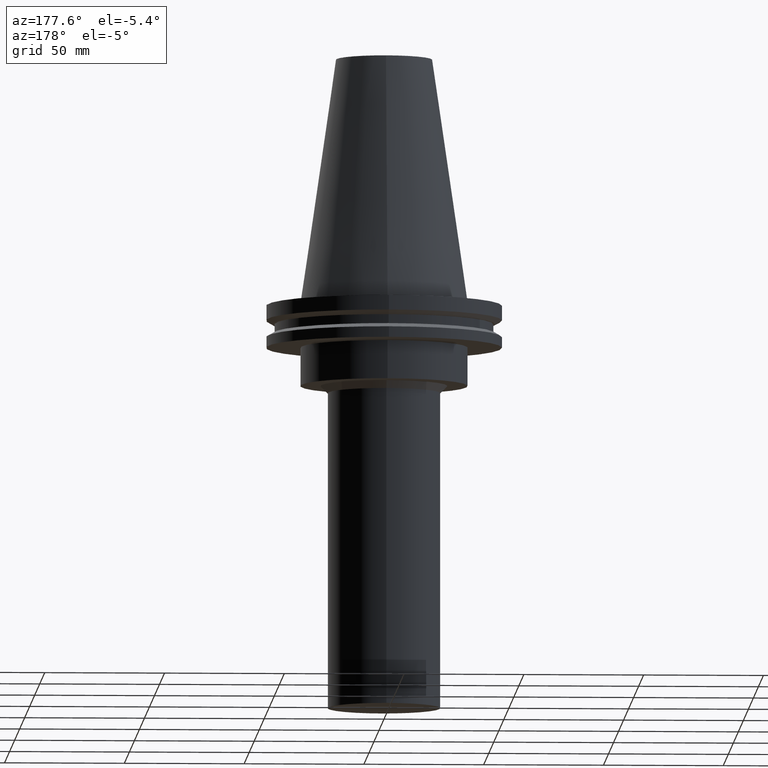
[diagram: clean part render]
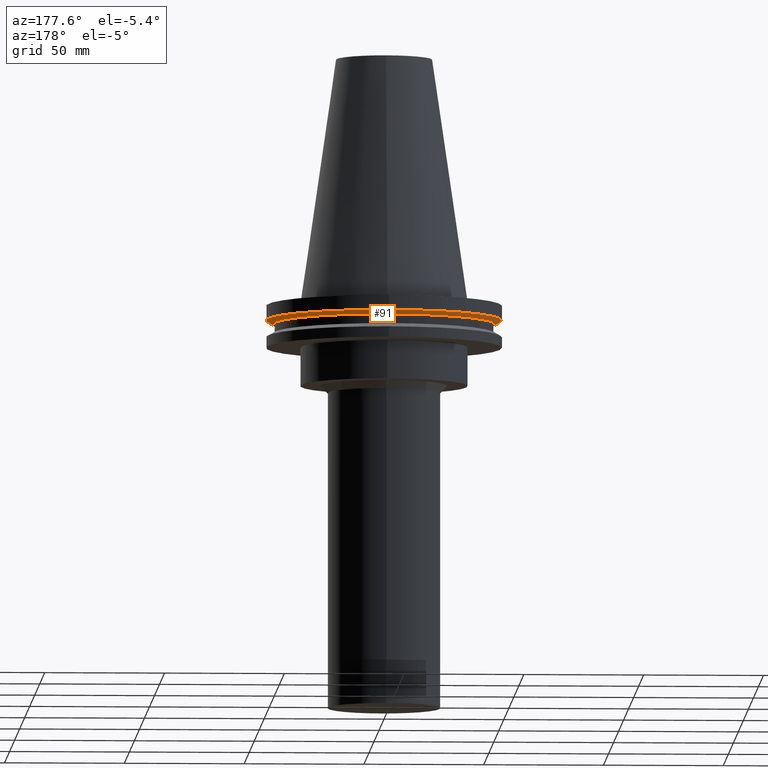
[diagram: same view with one face highlighted and labeled with its STEP entity id]
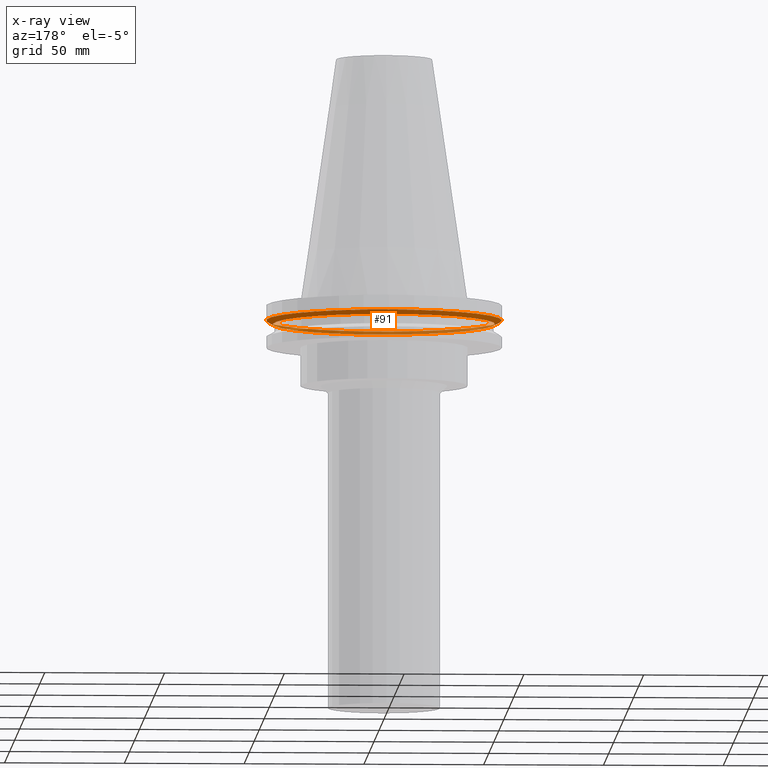
[diagram: x-ray of the same camera — body ghosted, the highlighted face saturated]
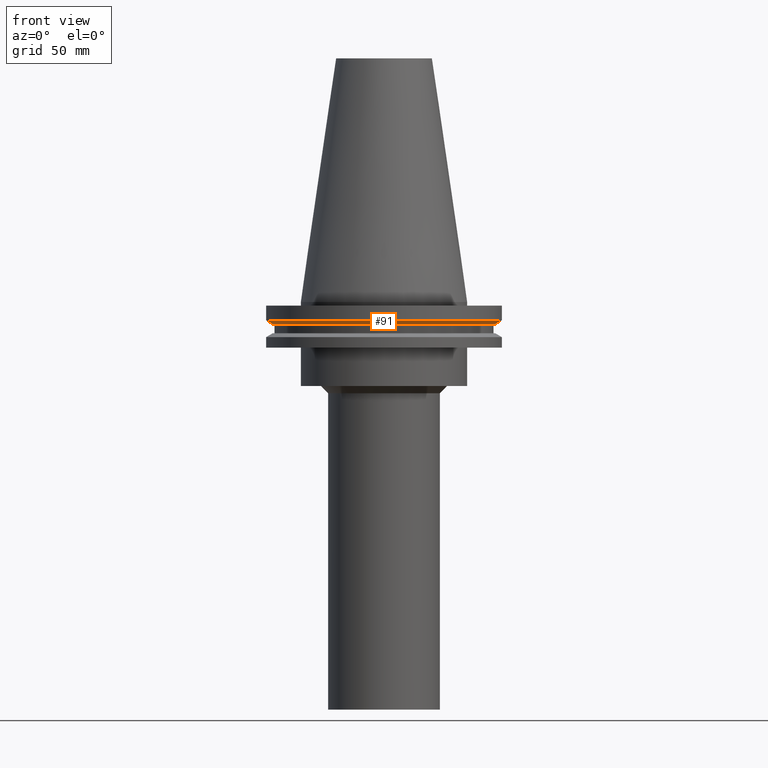
[diagram: same view with one face highlighted and labeled with its STEP entity id]
A machine part, auxiliary view. The second image highlights one B-rep face of the part: STEP entity #91.
The next image is the same camera in x-ray: the body ghosted, the highlighted face saturated — about 36% of this face is hidden behind the body in this view.
A second angle (front view) of the same face is appended — the face is thin or edge-on in the first view.
In plain terms, the highlighted conical surface has half-angle 60 deg.
Its self-contained STEP definition (entity closure, byte-faithful):
#72=EDGE_CURVE('Unnamed[1]',#183,#183,#184,.T.);
#91=ADVANCED_FACE('Unnamed[1]',(#210,#211),#212,.T.);
#93=EDGE_CURVE('Unnamed[1]',#214,#214,#215,.T.);
#183=VERTEX_POINT('',#329);
#184=CIRCLE('',#330,49.2125000000001);
#210=FACE_BOUND('',#362,.T.);
#211=FACE_BOUND('',#363,.T.);
#212=CONICAL_SURFACE('',#364,47.822529226926,1.04719755119663);
#214=VERTEX_POINT('',#367);
#215=CIRCLE('',#368,46.432558453852);
#329=CARTESIAN_POINT('',(4.65059621976208E-016,49.2125,-7.59500000000002));
#330=AXIS2_PLACEMENT_3D('',#494,#495,#496);
#362=EDGE_LOOP('',(#522));
#363=EDGE_LOOP('',(#523));
#364=AXIS2_PLACEMENT_3D('',#524,#525,#526);
#367=CARTESIAN_POINT('',(5.63337527607778E-016,46.432558453852,-9.19999999999993));
#368=AXIS2_PLACEMENT_3D('',#527,#528,#529);
#494=CARTESIAN_POINT('',(4.65059621976211E-016,-1.51868496264641E-014,-7.59500000000006));
#495=DIRECTION('',(6.12323399573676E-017,4.82717484294155E-016,-1.0));
#496=DIRECTION('',(-3.4385073832434E-032,1.0,4.82717484294155E-016));
#522=ORIENTED_EDGE('',*,*,#93,.F.);
#523=ORIENTED_EDGE('',*,*,#72,.T.);
#524=CARTESIAN_POINT('',(5.14198574791995E-016,-1.4799468845318E-014,-8.39750000000001));
#525=DIRECTION('',(-6.12323399573677E-017,-4.82717484294155E-016,1.0));
#526=DIRECTION('',(-3.4385073832434E-032,1.0,4.82717484294155E-016));
#527=CARTESIAN_POINT('',(5.6333752760778E-016,-1.4412088064172E-014,-9.19999999999996));
#528=DIRECTION('',(6.12323399573677E-017,4.82717484294155E-016,-1.0));
#529=DIRECTION('',(-3.4385073832434E-032,1.0,4.82717484294155E-016));